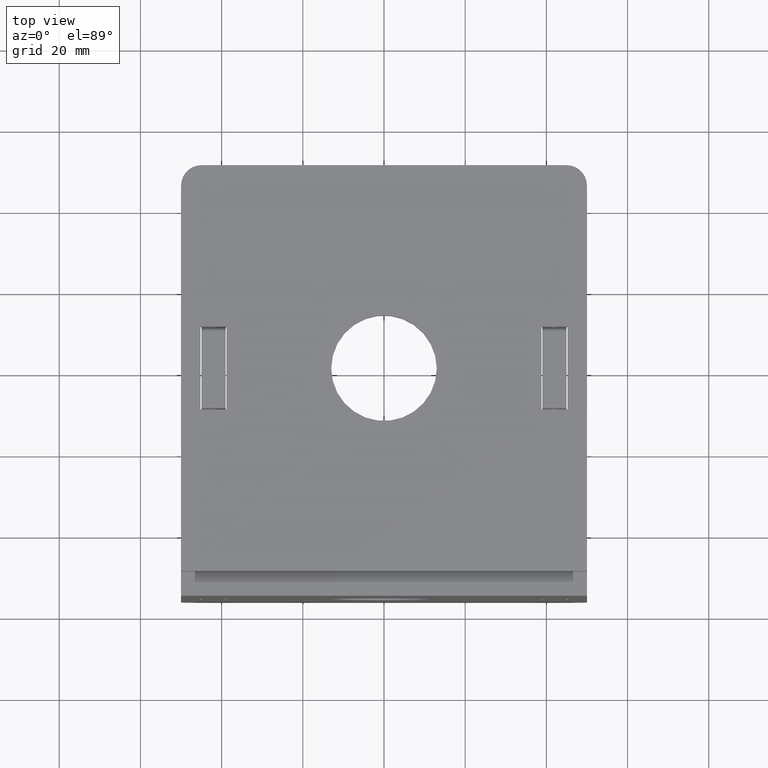
[diagram: clean part render]
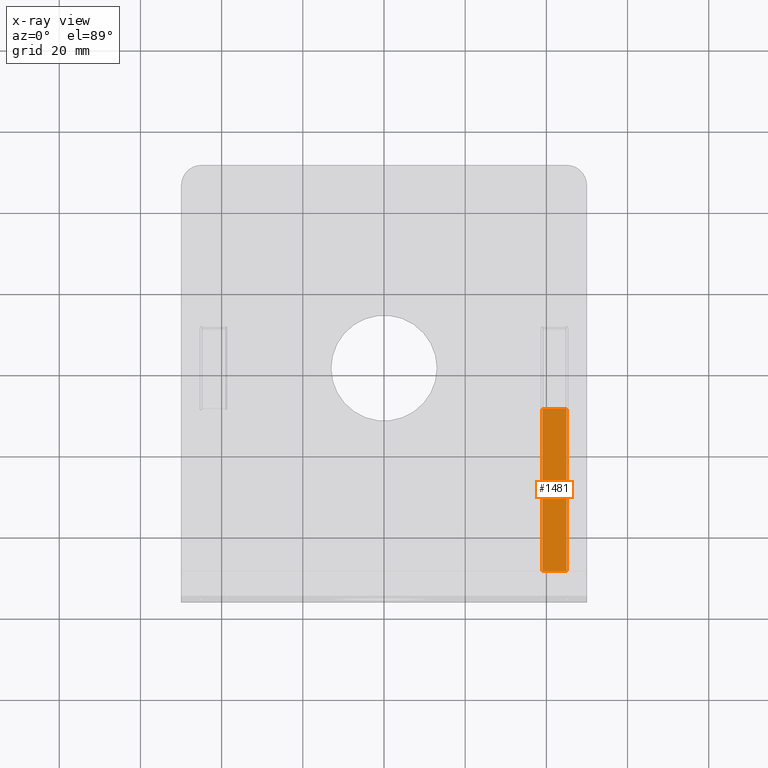
[diagram: x-ray — body ghosted, one internal face saturated and labeled with its STEP entity id]
A machine part, top view, then the same camera in x-ray: the body is ghosted and one INTERNAL B-rep face — a face not visible from any outside direction — is saturated and labeled: STEP entity #1481.
In plain terms, the highlighted planar face has unit normal (-0, -0, 1).
Its self-contained STEP definition (entity closure, byte-faithful):
#48 = LINE ( 'NONE', #1036, #503 ) ;
#111 = B_SPLINE_CURVE_WITH_KNOTS ( 'NONE', 1,
 ( #1121, #260 ),
 .UNSPECIFIED., .F., .F.,
 ( 2, 2 ),
 ( 0.5000000000000000000, 0.6153846153846154188 ),
 .UNSPECIFIED. ) ;
#181 = LINE ( 'NONE', #1538, #1122 ) ;
#206 = FACE_OUTER_BOUND ( 'NONE', #792, .T. ) ;
#220 = AXIS2_PLACEMENT_3D ( 'NONE', #1472, #1448, #1086 ) ;
#223 = EDGE_CURVE ( 'NONE', #916, #538, #48, .T. ) ;
#260 = CARTESIAN_POINT ( 'NONE',  ( 0.000000000000000000, 40.00000000000000711, 0.000000000000000000 ) ) ;
#279 = EDGE_CURVE ( 'NONE', #1326, #563, #181, .T. ) ;
#287 = ORIENTED_EDGE ( 'NONE', *, *, #1164, .T. ) ;
#398 = DIRECTION ( 'NONE',  ( -4.237045877651918877E-32, -1.000000000000000000, -4.005934284325450574E-32 ) ) ;
#417 = LINE ( 'NONE', #553, #710 ) ;
#503 = VECTOR ( 'NONE', #1157, 1000.000000000000000 ) ;
#538 = VERTEX_POINT ( 'NONE', #874 ) ;
#549 = EDGE_CURVE ( 'NONE', #916, #1326, #111, .T. ) ;
#553 = CARTESIAN_POINT ( 'NONE',  ( 2.220446049250313081E-13, 5.204170427930421283E-15, -5.999999999999894307 ) ) ;
#563 = VERTEX_POINT ( 'NONE', #1475 ) ;
#678 = DIRECTION ( 'NONE',  ( -3.978414497066059672E-35, 5.700752635386218125E-32, 1.000000000000000000 ) ) ;
#710 = VECTOR ( 'NONE', #678, 1000.000000000000000 ) ;
#730 = PLANE ( 'NONE',  #220 ) ;
#792 = EDGE_LOOP ( 'NONE', ( #1079, #833, #287, #822 ) ) ;
#822 = ORIENTED_EDGE ( 'NONE', *, *, #279, .F. ) ;
#833 = ORIENTED_EDGE ( 'NONE', *, *, #223, .T. ) ;
#874 = CARTESIAN_POINT ( 'NONE',  ( 2.220446049250313081E-13, 5.204170427930421283E-15, -5.999999999999894307 ) ) ;
#916 = VERTEX_POINT ( 'NONE', #1456 ) ;
#1036 = CARTESIAN_POINT ( 'NONE',  ( 2.220446049250313081E-13, 5.204170427930421283E-15, -5.999999999999894307 ) ) ;
#1079 = ORIENTED_EDGE ( 'NONE', *, *, #549, .F. ) ;
#1086 = DIRECTION ( 'NONE',  ( -3.978414497066059672E-35, 5.700752635386218125E-32, 1.000000000000000000 ) ) ;
#1121 = CARTESIAN_POINT ( 'NONE',  ( 2.220446049250313081E-13, 40.00000000000000711, -5.999999999999894307 ) ) ;
#1122 = VECTOR ( 'NONE', #398, 1000.000000000000000 ) ;
#1157 = DIRECTION ( 'NONE',  ( -4.237045877651918877E-32, -1.000000000000000000, -4.005934284325450574E-32 ) ) ;
#1164 = EDGE_CURVE ( 'NONE', #538, #563, #417, .T. ) ;
#1326 = VERTEX_POINT ( 'NONE', #1553 ) ;
#1448 = DIRECTION ( 'NONE',  ( -1.000000000000000000, -3.620748295448003404E-32, -3.978414497066059672E-35 ) ) ;
#1456 = CARTESIAN_POINT ( 'NONE',  ( 2.220446049250313081E-13, 40.00000000000000711, -5.999999999999894307 ) ) ;
#1472 = CARTESIAN_POINT ( 'NONE',  ( 2.220446049250313081E-13, 5.204170427930421283E-15, -5.999999999999894307 ) ) ;
#1475 = CARTESIAN_POINT ( 'NONE',  ( 0.000000000000000000, 0.000000000000000000, 0.000000000000000000 ) ) ;
#1481 = ADVANCED_FACE ( 'NONE', ( #206 ), #730, .T. ) ;
#1538 = CARTESIAN_POINT ( 'NONE',  ( 0.000000000000000000, 0.000000000000000000, 0.000000000000000000 ) ) ;
#1553 = CARTESIAN_POINT ( 'NONE',  ( 0.000000000000000000, 40.00000000000000711, 0.000000000000000000 ) ) ;